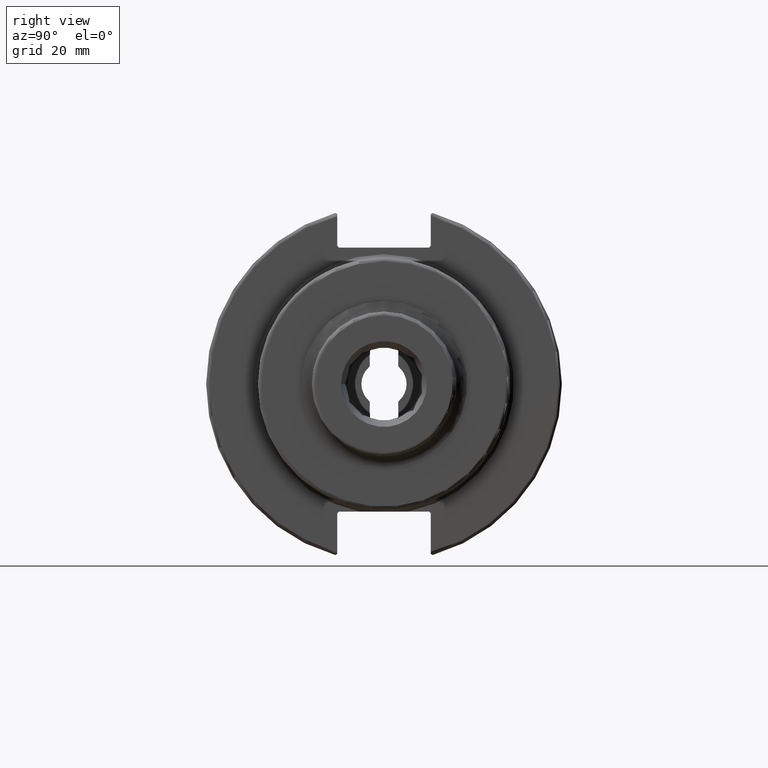
[diagram: clean part render]
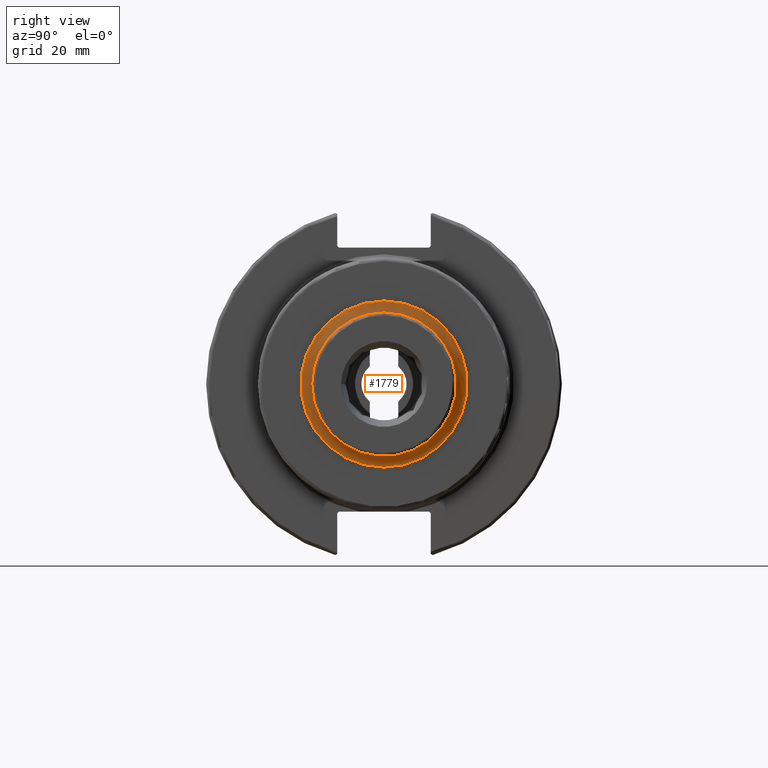
[diagram: same view with one face highlighted and labeled with its STEP entity id]
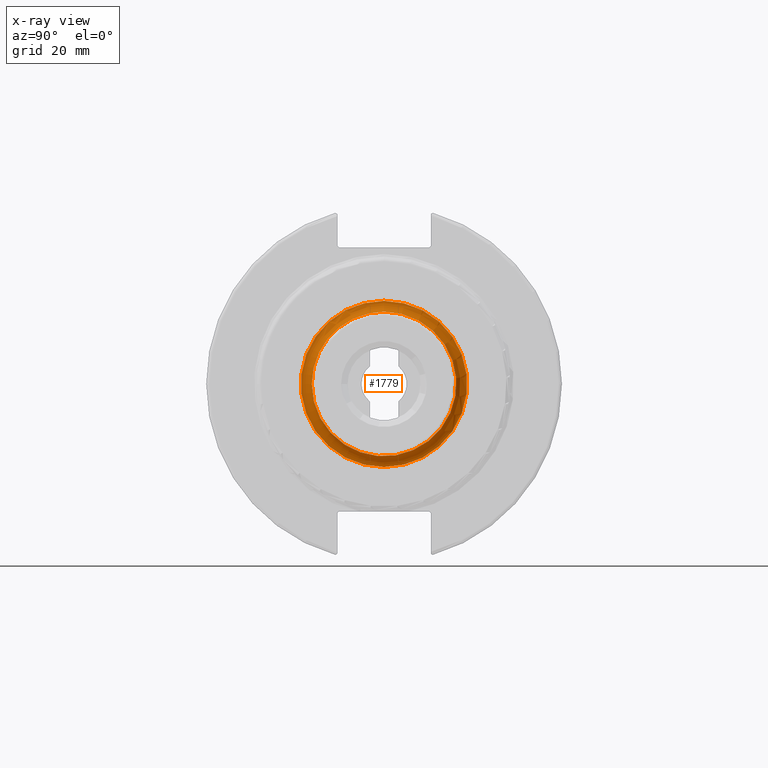
[diagram: x-ray of the same camera — body ghosted, the highlighted face saturated]
A machine part, right view. The second image highlights one B-rep face of the part: STEP entity #1779.
The next image is the same camera in x-ray: the body ghosted, the highlighted face saturated — about 0% of this face is hidden behind the body in this view.
In plain terms, the highlighted toroidal blend (fillet) surface has major radius 23 mm and minor (blend) radius 3 mm.
Its self-contained STEP definition (entity closure, byte-faithful):
#18=TOROIDAL_SURFACE('',#1923,23.,3.);
#91=CIRCLE('',#1906,20.);
#92=CIRCLE('',#1907,20.);
#102=CIRCLE('',#1922,23.);
#103=CIRCLE('',#1924,3.);
#251=FACE_OUTER_BOUND('',#358,.T.);
#358=EDGE_LOOP('',(#1427,#1428,#1429,#1430,#1431));
#802=VERTEX_POINT('',#3432);
#803=VERTEX_POINT('',#3434);
#813=VERTEX_POINT('',#3473);
#1023=EDGE_CURVE('',#803,#802,#91,.T.);
#1024=EDGE_CURVE('',#802,#803,#92,.T.);
#1037=EDGE_CURVE('',#813,#813,#102,.T.);
#1038=EDGE_CURVE('',#813,#803,#103,.T.);
#1427=ORIENTED_EDGE('',*,*,#1037,.T.);
#1428=ORIENTED_EDGE('',*,*,#1038,.T.);
#1429=ORIENTED_EDGE('',*,*,#1023,.T.);
#1430=ORIENTED_EDGE('',*,*,#1024,.T.);
#1431=ORIENTED_EDGE('',*,*,#1038,.F.);
#1779=ADVANCED_FACE('',(#251),#18,.F.);
#1906=AXIS2_PLACEMENT_3D('',#3435,#2175,#2176);
#1907=AXIS2_PLACEMENT_3D('',#3436,#2177,#2178);
#1922=AXIS2_PLACEMENT_3D('',#3474,#2208,#2209);
#1923=AXIS2_PLACEMENT_3D('',#3475,#2210,#2211);
#1924=AXIS2_PLACEMENT_3D('',#3476,#2212,#2213);
#2175=DIRECTION('center_axis',(-1.,0.,0.));
#2176=DIRECTION('ref_axis',(0.,-1.,1.83697019872103E-16));
#2177=DIRECTION('center_axis',(-1.,0.,0.));
#2178=DIRECTION('ref_axis',(0.,-1.,1.83697019872103E-16));
#2208=DIRECTION('center_axis',(1.,0.,0.));
#2209=DIRECTION('ref_axis',(0.,-1.,1.83697019872103E-16));
#2210=DIRECTION('center_axis',(1.,0.,0.));
#2211=DIRECTION('ref_axis',(0.,0.,-1.));
#2212=DIRECTION('center_axis',(0.,-1.,-1.22464679914735E-16));
#2213=DIRECTION('ref_axis',(0.,-1.22464679914735E-16,1.));
#3432=CARTESIAN_POINT('',(38.,-20.,-2.4492935982947E-15));
#3434=CARTESIAN_POINT('',(38.,-2.4492935982947E-15,20.));
#3435=CARTESIAN_POINT('Origin',(38.,0.,0.));
#3436=CARTESIAN_POINT('Origin',(38.,0.,0.));
#3473=CARTESIAN_POINT('',(35.,-2.81668763803891E-15,23.));
#3474=CARTESIAN_POINT('Origin',(35.,0.,0.));
#3475=CARTESIAN_POINT('Origin',(38.,0.,0.));
#3476=CARTESIAN_POINT('Origin',(38.,-2.81668763803891E-15,23.));